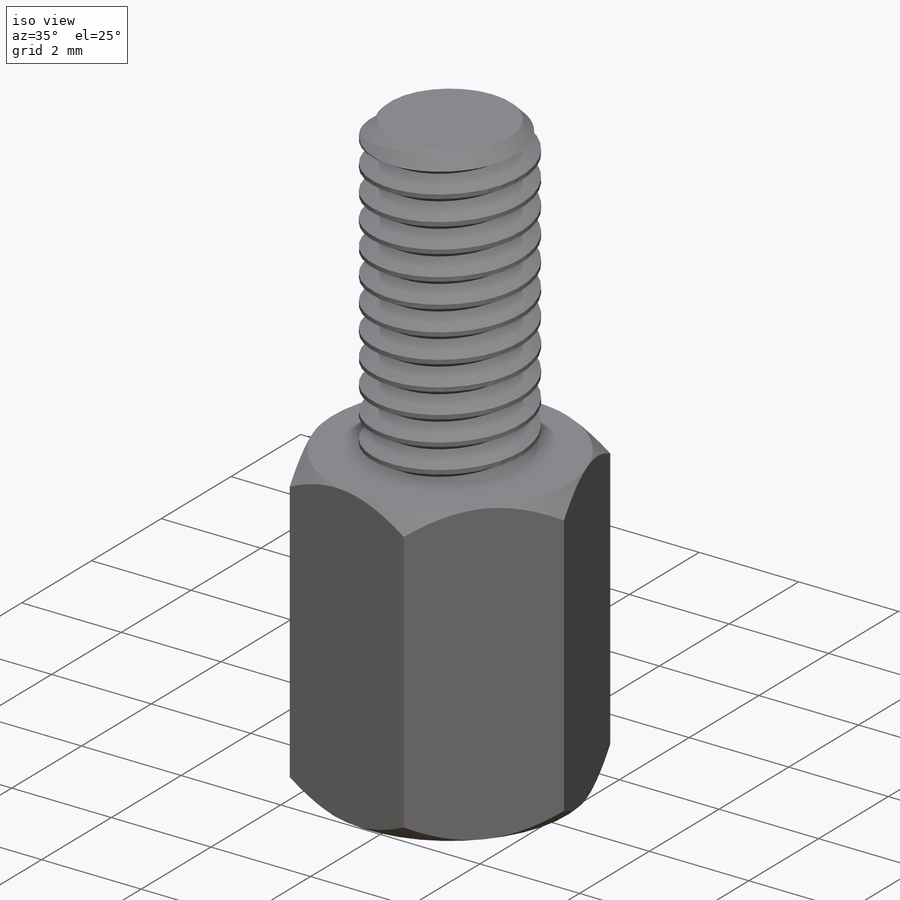
[diagram: iso view]
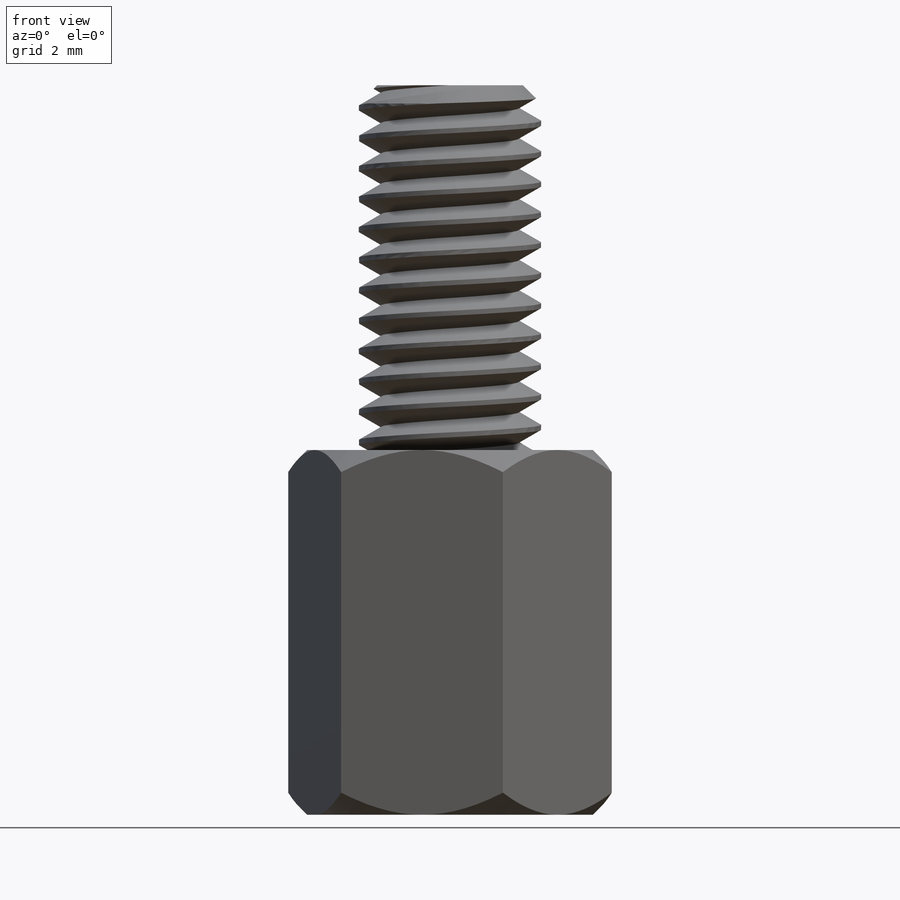
[diagram: front view]
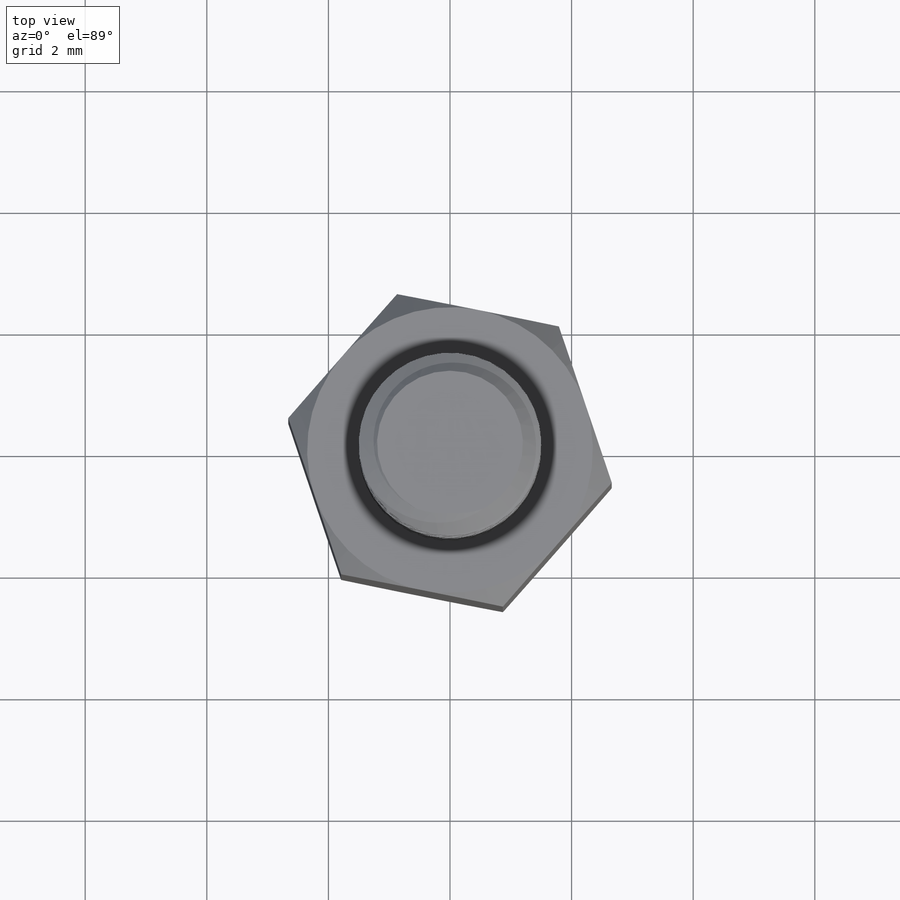
[diagram: top view]
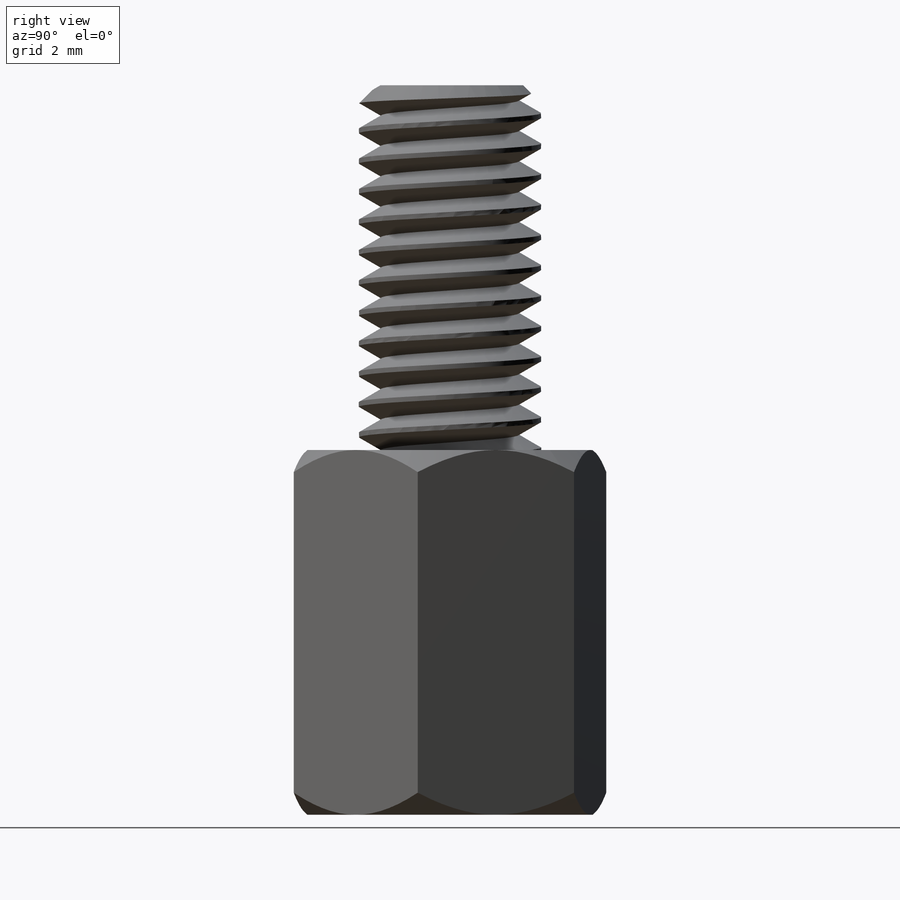
[diagram: right view]
SOLIDWORKS PART (.sldprt)
format: sldprt  version: not decoded by parser v0  size: 778,240 bytes
history: native  units: mm
features: sketch x11, plane x4, sweep x3, extrude x2, material x1, chamfer x1, helix x1, hole x1, thread x1 (+13 scaffold rows collapsed)
feature tree (38):
  scaffold x13  (default folders/planes/origin — collapsed)
  material  "Brass"
  sketch  "Sketch8"
  extrude  "Boss-Extrude3"  Depth=6mm
  plane  "Plane3"  Offset=0mm
  plane  "Plane4"  Offset=0mm
  sketch  "Sketch9"  dims[D1=4.7mm]
  sketch  "Sketch10"  dims[D1=~2.03516mm]
  plane  "Plane5"
  sketch  "Sketch15"  dims[D1=0.3635mm]
  sketch  "Sketch16"  dims[D1=0.3635mm]
  sweep  "Cut-Sweep3"
  sweep  "Cut-Sweep4"
  sketch  "Sketch17"  dims[D1=~1.274316mm]
  extrude  "Boss-Extrude4"  Depth=6mm
  chamfer  "Chamfer3"  Distance=0.3mm Angle=45deg
  plane  "Plane6"  Offset=2mm
  sketch  "Sketch18"
  helix  "Helix/Spiral1"  Pitch=8mm
  sketch  "Sketch20"  dims[c1.D1=1.1365mm c1.D2=60.0deg c2.D1=~0.651882mm c3.D1=30.0deg c3.D2=~0.564546mm c4.D2=60.0deg c4.D3=~0.730051mm]
  sweep  "Cut-Sweep7"
  sketch  "Sketch21"
  hole  "M3x0.5 Tapped Hole1"  Diameter=2.5mm Depth=5mm
  sketch  "Sketch23"
  sketch  "Sketch24"  dims[hole-wizard template sketch: 47 standard entries collapsed; hole parameters kept: c15.Tap Drill Depth=5.0mm c15.D3=~14.816244mm c15.Drill Angle=118.0deg]
  thread  "Hole Thread1"  Diameter=3.5mm  [1 undecoded]
decode coverage: 13 of 20 modeling features carry decoded parameters
note: ~ marks probable driven/reference dimensions
note: 1 parameter value undecoded
note: suppression state not decoded; provenance and decode notes live in map.json
